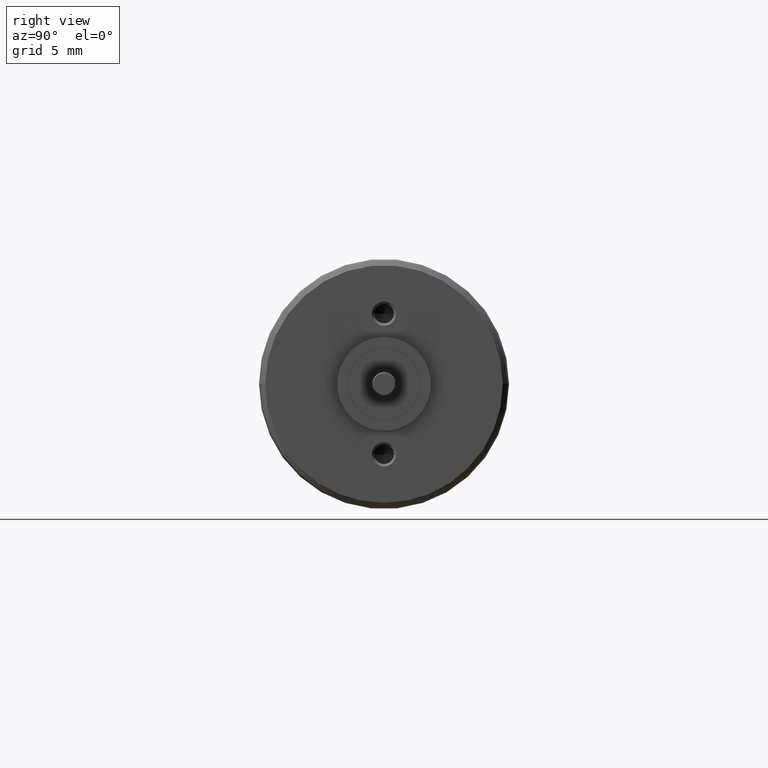
[diagram: clean part render]
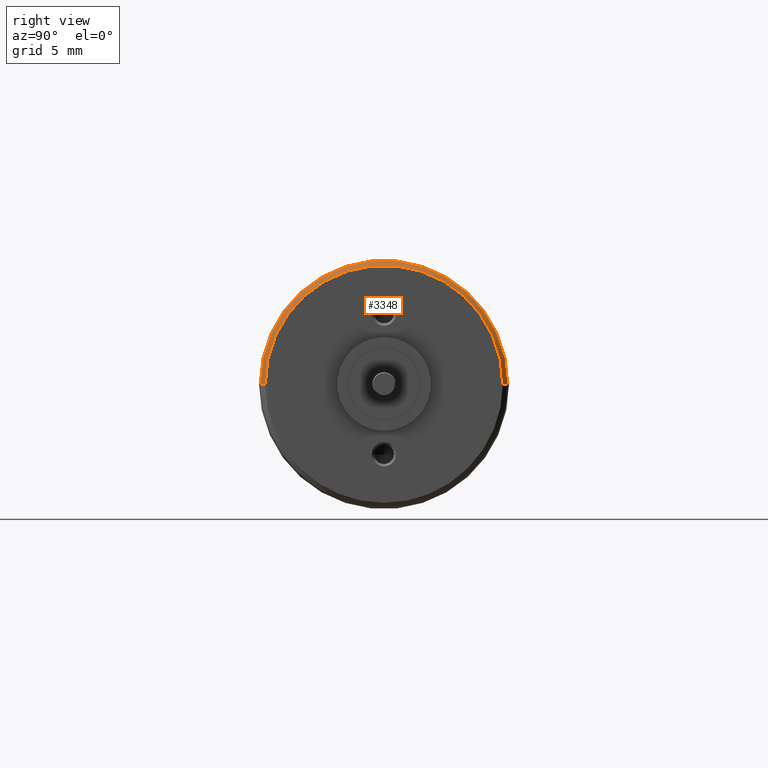
[diagram: same view with one face highlighted and labeled with its STEP entity id]
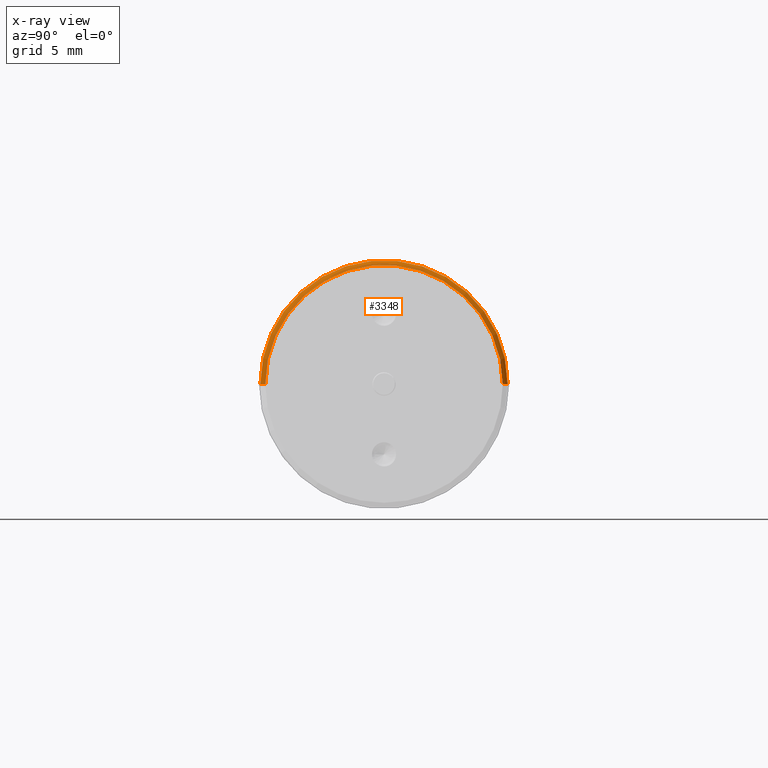
[diagram: x-ray of the same camera — body ghosted, the highlighted face saturated]
A machine part, right view. The second image highlights one B-rep face of the part: STEP entity #3348.
The next image is the same camera in x-ray: the body ghosted, the highlighted face saturated — about 0% of this face is hidden behind the body in this view.
In plain terms, the highlighted conical surface has half-angle 45.75 deg.
Its self-contained STEP definition (entity closure, byte-faithful):
#431=CARTESIAN_POINT('',(-2.998966165983E-1,1.337780593064E-14,0.E0));
#432=DIRECTION('',(-1.E0,0.E0,0.E0));
#433=DIRECTION('',(0.E0,-1.E0,0.E0));
#434=AXIS2_PLACEMENT_3D('',#431,#432,#433);
#436=DIRECTION('',(6.977921066132E-1,7.163003392072E-1,-4.739867178907E-10));
#437=VECTOR('',#436,4.297826368739E-1);
#438=CARTESIAN_POINT('',(-2.998977512087E-1,-7.907300295165E0,0.E0));
#439=LINE('',#438,#437);
#440=DIRECTION('',(-6.977921066132E-1,7.163003392072E-1,-4.739976693714E-10));
#441=VECTOR('',#440,4.297826368739E-1);
#442=CARTESIAN_POINT('',(1.180361281013E-6,7.599446846587E0,
2.037169422815E-10));
#443=LINE('',#442,#441);
#467=CARTESIAN_POINT('',(2.171404096529E-6,1.334108013451E-14,0.E0));
#468=DIRECTION('',(-1.E0,0.E0,0.E0));
#469=DIRECTION('',(0.E0,-1.E0,0.E0));
#470=AXIS2_PLACEMENT_3D('',#467,#468,#469);
#2204=CARTESIAN_POINT('',(-2.998966165983E-1,-7.907301400453E0,0.E0));
#2205=CARTESIAN_POINT('',(-2.998966165983E-1,7.907301400453E0,0.E0));
#2206=VERTEX_POINT('',#2204);
#2207=VERTEX_POINT('',#2205);
#2208=CARTESIAN_POINT('',(1.180361286046E-6,-7.599446846587E0,
-2.037127083039E-10));
#2209=VERTEX_POINT('',#2208);
#2210=CARTESIAN_POINT('',(1.180361281013E-6,7.599446846587E0,
2.037169422815E-10));
#2211=VERTEX_POINT('',#2210);
#3334=CARTESIAN_POINT('',(-1.499471839956E-1,1.335944302785E-14,0.E0));
#3335=DIRECTION('',(-1.E0,0.E0,0.E0));
#3336=DIRECTION('',(0.E0,0.E0,-1.E0));
#3337=AXIS2_PLACEMENT_3D('',#3334,#3335,#3336);
#3338=CONICAL_SURFACE('',#3337,7.753373946729E0,4.575001032583E1);
#3339=ORIENTED_EDGE('',*,*,#3324,.T.);
#3341=ORIENTED_EDGE('',*,*,#3340,.F.);
#3343=ORIENTED_EDGE('',*,*,#3342,.F.);
#3345=ORIENTED_EDGE('',*,*,#3344,.F.);
#3346=EDGE_LOOP('',(#3339,#3341,#3343,#3345));
#3347=FACE_OUTER_BOUND('',#3346,.F.);
#3348=ADVANCED_FACE('',(#3347),#3338,.T.);
#435=CIRCLE('',#434,7.907301400453E0);
#471=CIRCLE('',#470,7.599446572256E0);
#3324=EDGE_CURVE('',#2206,#2207,#435,.T.);
#3340=EDGE_CURVE('',#2211,#2207,#443,.T.);
#3342=EDGE_CURVE('',#2209,#2211,#471,.T.);
#3344=EDGE_CURVE('',#2206,#2209,#439,.T.);